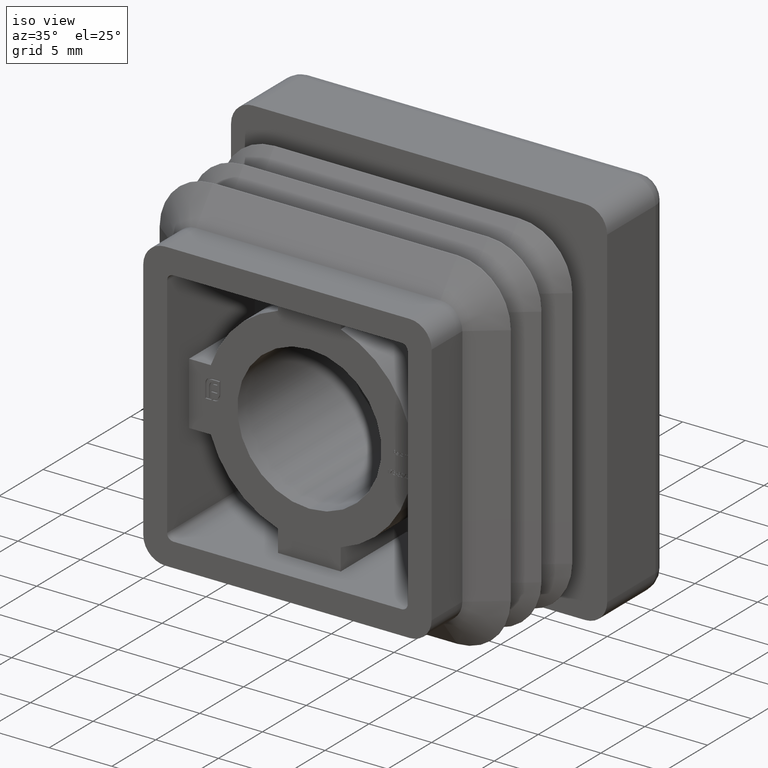
[diagram: clean part render]
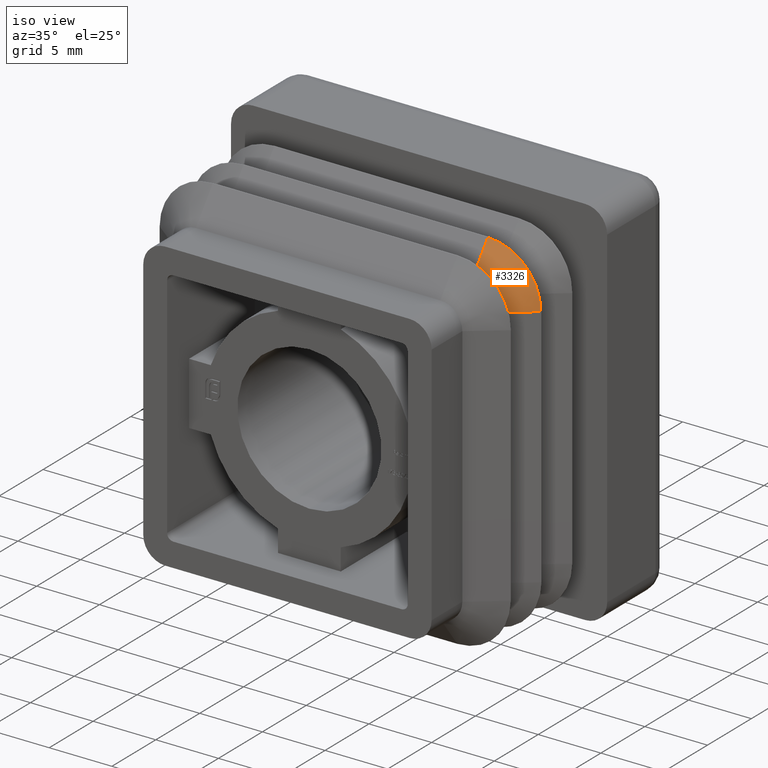
[diagram: same view with one face highlighted and labeled with its STEP entity id]
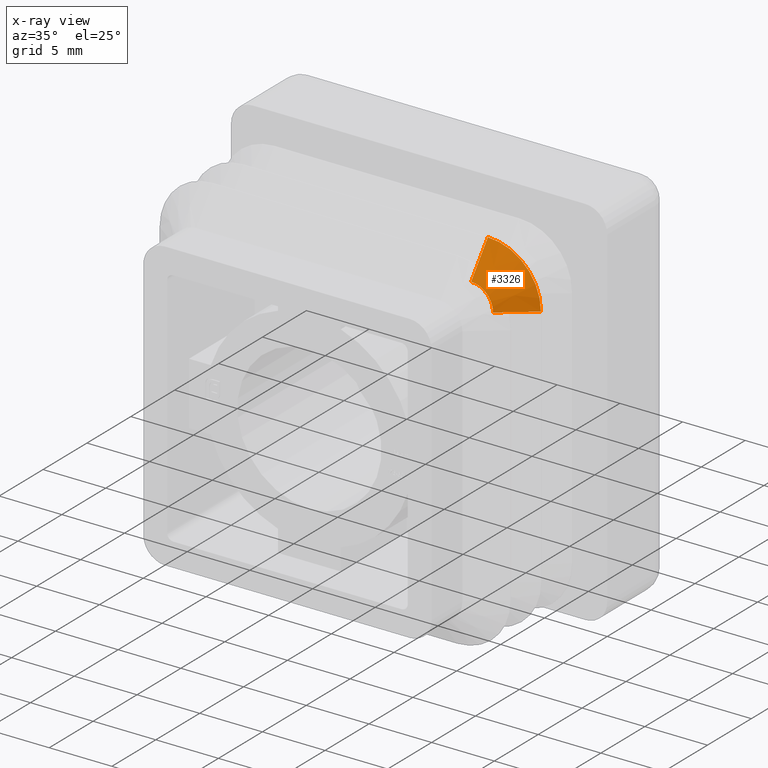
[diagram: x-ray of the same camera — body ghosted, the highlighted face saturated]
A machine part, iso view. The second image highlights one B-rep face of the part: STEP entity #3326.
The next image is the same camera in x-ray: the body ghosted, the highlighted face saturated — about 0% of this face is hidden behind the body in this view.
In plain terms, the highlighted conical surface has half-angle 52.398 deg.
Its self-contained STEP definition (entity closure, byte-faithful):
#271 = VERTEX_POINT ( 'NONE', #13297 ) ;
#1418 = CARTESIAN_POINT ( 'NONE',  ( 13.98050863926438048, -6.089613418562888292, 9.750000000000000000 ) ) ;
#1429 = AXIS2_PLACEMENT_3D ( 'NONE', #15729, #19212, #7331 ) ;
#1652 = VERTEX_POINT ( 'NONE', #17737 ) ;
#3274 = VERTEX_POINT ( 'NONE', #13247 ) ;
#3326 = ADVANCED_FACE ( 'NONE', ( #18819 ), #6638, .T. ) ;
#3482 = DIRECTION ( 'NONE',  ( 0.000000000000000000, 0.000000000000000000, 1.000000000000000000 ) ) ;
#3945 = AXIS2_PLACEMENT_3D ( 'NONE', #15622, #5455, #17315 ) ;
#4386 = EDGE_CURVE ( 'NONE', #3274, #1652, #17466, .T. ) ;
#5455 = DIRECTION ( 'NONE',  ( -0.000000000000000000, -1.000000000000000000, -0.000000000000000000 ) ) ;
#5726 = ORIENTED_EDGE ( 'NONE', *, *, #7587, .F. ) ;
#5943 = LINE ( 'NONE', #21944, #13912 ) ;
#6060 = VECTOR ( 'NONE', #16447, 1000.000000000000114 ) ;
#6638 = CONICAL_SURFACE ( 'NONE', #8648, 1.750000000000036193, 0.9145176648399677699 ) ;
#7052 = DIRECTION ( 'NONE',  ( 0.000000000000000000, 1.000000000000000000, 0.000000000000000000 ) ) ;
#7331 = DIRECTION ( 'NONE',  ( 1.000000000000000000, 0.000000000000000000, 9.912705577010121432E-16 ) ) ;
#7587 = EDGE_CURVE ( 'NONE', #3274, #271, #11839, .T. ) ;
#7985 = ORIENTED_EDGE ( 'NONE', *, *, #4386, .T. ) ;
#8648 = AXIS2_PLACEMENT_3D ( 'NONE', #13683, #7052, #3482 ) ;
#9304 = EDGE_CURVE ( 'NONE', #271, #14375, #5943, .T. ) ;
#9439 = CARTESIAN_POINT ( 'NONE',  ( 9.749999999999994671, -6.089613418562888292, 13.98050863926438581 ) ) ;
#11839 = CIRCLE ( 'NONE', #1429, 1.750000000000036193 ) ;
#12025 = CIRCLE ( 'NONE', #3945, 4.230508639264385806 ) ;
#13247 = CARTESIAN_POINT ( 'NONE',  ( 11.50000000000003020, -8.000000000000000000, 9.750000000000000000 ) ) ;
#13297 = CARTESIAN_POINT ( 'NONE',  ( 9.749999999999994671, -8.000000000000028422, 11.50000000000000000 ) ) ;
#13683 = CARTESIAN_POINT ( 'NONE',  ( 9.749999999999994671, -8.000000000000000000, 9.750000000000000000 ) ) ;
#13912 = VECTOR ( 'NONE', #15327, 1000.000000000000114 ) ;
#14251 = EDGE_LOOP ( 'NONE', ( #19738, #17216, #5726, #7985 ) ) ;
#14375 = VERTEX_POINT ( 'NONE', #9439 ) ;
#15327 = DIRECTION ( 'NONE',  ( 1.409606710661237009E-16, 0.6101727852867675495, 0.7922683712577375248 ) ) ;
#15622 = CARTESIAN_POINT ( 'NONE',  ( 9.749999999999994671, -6.089613418562888292, 9.750000000000000000 ) ) ;
#15729 = CARTESIAN_POINT ( 'NONE',  ( 9.749999999999994671, -8.000000000000000000, 9.750000000000000000 ) ) ;
#16447 = DIRECTION ( 'NONE',  ( 0.7922683712577375248, 0.6101727852867675495, 0.000000000000000000 ) ) ;
#16559 = EDGE_CURVE ( 'NONE', #1652, #14375, #12025, .T. ) ;
#17216 = ORIENTED_EDGE ( 'NONE', *, *, #9304, .F. ) ;
#17315 = DIRECTION ( 'NONE',  ( 1.000000000000000000, 0.000000000000000000, 4.100508056824217573E-16 ) ) ;
#17466 = LINE ( 'NONE', #1418, #6060 ) ;
#17737 = CARTESIAN_POINT ( 'NONE',  ( 13.98050863926438048, -6.089613418562888292, 9.750000000000000000 ) ) ;
#18819 = FACE_OUTER_BOUND ( 'NONE', #14251, .T. ) ;
#19212 = DIRECTION ( 'NONE',  ( -0.000000000000000000, -1.000000000000000000, -0.000000000000000000 ) ) ;
#19738 = ORIENTED_EDGE ( 'NONE', *, *, #16559, .T. ) ;
#21944 = CARTESIAN_POINT ( 'NONE',  ( 9.749999999999994671, -6.089613418562888292, 13.98050863926438403 ) ) ;